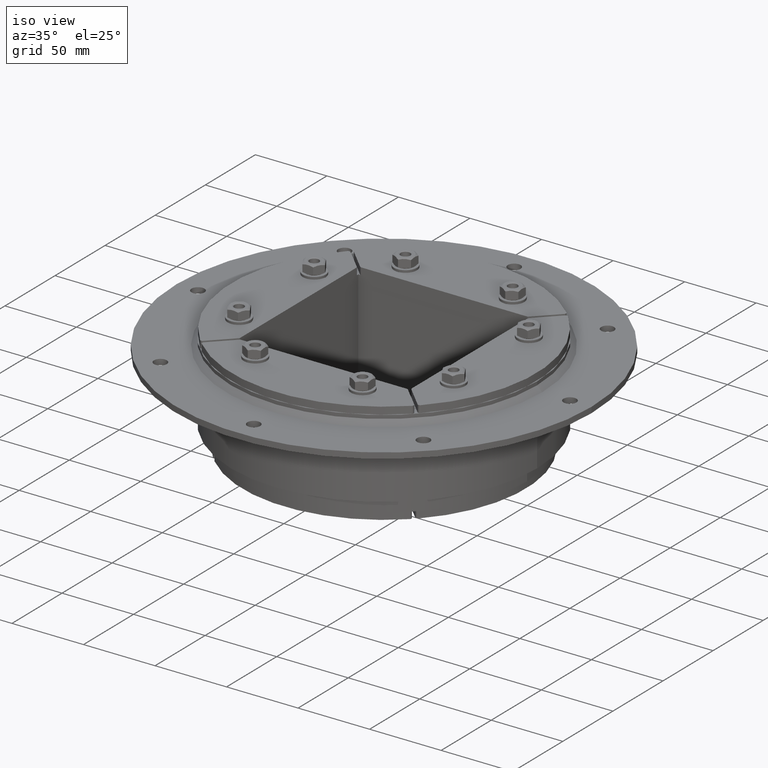
[diagram: clean part render]
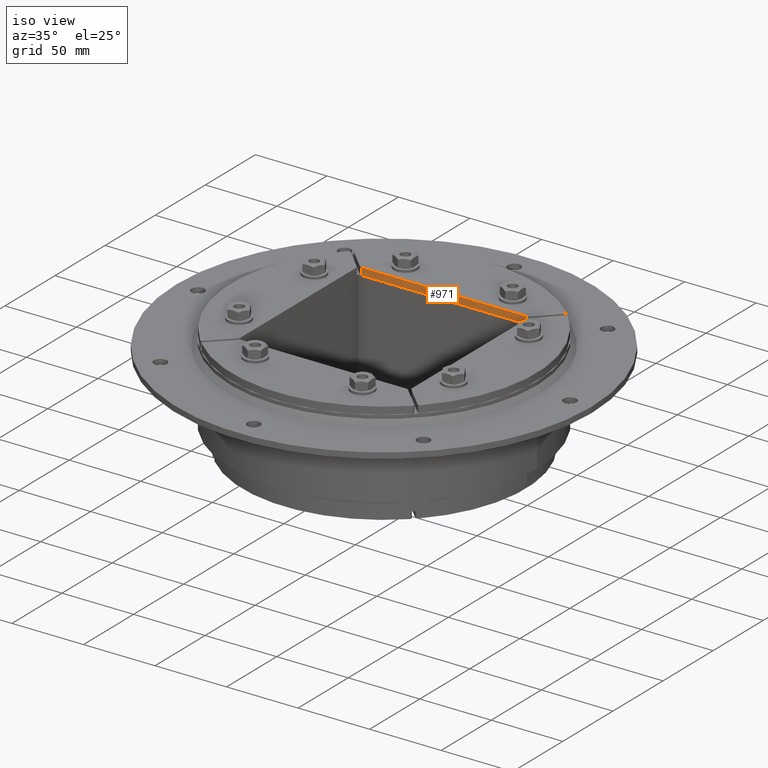
[diagram: same view with one face highlighted and labeled with its STEP entity id]
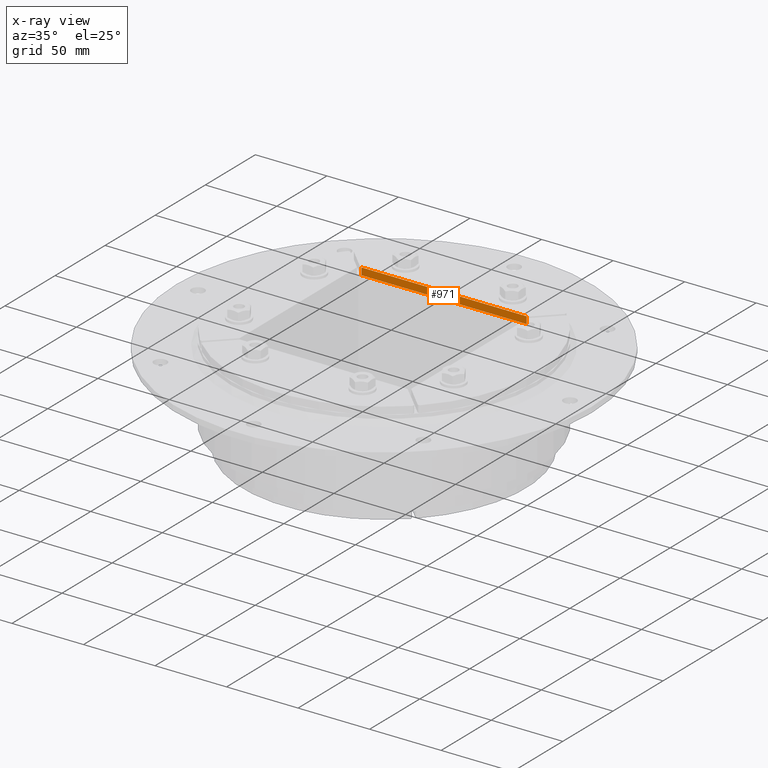
[diagram: x-ray of the same camera — body ghosted, the highlighted face saturated]
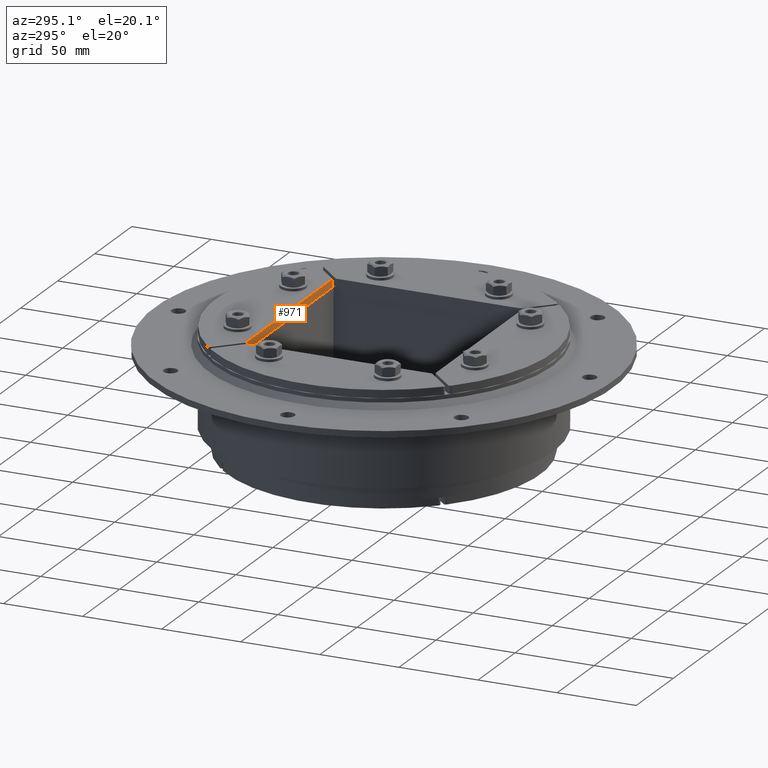
[diagram: same view with one face highlighted and labeled with its STEP entity id]
A machine part, iso view. The second image highlights one B-rep face of the part: STEP entity #971.
The next image is the same camera in x-ray: the body ghosted, the highlighted face saturated — about 0% of this face is hidden behind the body in this view.
A second angle (auxiliary view) of the same face is appended — the face is thin or edge-on in the first view.
In plain terms, the highlighted planar face has unit normal (0, 1, 0).
Its self-contained STEP definition (entity closure, byte-faithful):
#799=CARTESIAN_POINT('',(57.86446609406724,59.900000000000013,-5.0));
#800=VERTEX_POINT('',#799);
#808=CARTESIAN_POINT('',(-57.864466094067275,59.900000000000013,-5.0));
#809=VERTEX_POINT('',#808);
#810=CARTESIAN_POINT('',(57.864466094067254,59.900000000000013,-5.0));
#811=DIRECTION('',(-1.0,0.0,0.0));
#812=VECTOR('',#811,115.72893218813454);
#813=LINE('',#810,#812);
#814=EDGE_CURVE('',#800,#809,#813,.T.);
#923=CARTESIAN_POINT('',(57.86446609406724,59.900000000000013,0.0));
#924=VERTEX_POINT('',#923);
#932=CARTESIAN_POINT('',(57.864466094067247,59.900000000000013,0.0));
#933=DIRECTION('',(0.0,0.0,-1.0));
#934=VECTOR('',#933,5.0);
#935=LINE('',#932,#934);
#936=EDGE_CURVE('',#924,#800,#935,.T.);
#948=CARTESIAN_POINT('',(-59.900000000000006,59.900000000000013,0.0));
#949=DIRECTION('',(0.0,1.0,0.0));
#950=DIRECTION('',(1.0,0.0,0.0));
#951=AXIS2_PLACEMENT_3D('',#948,#949,#950);
#952=PLANE('',#951);
#953=ORIENTED_EDGE('',*,*,#936,.F.);
#954=CARTESIAN_POINT('',(-57.864466094067275,59.900000000000013,0.0));
#955=VERTEX_POINT('',#954);
#956=CARTESIAN_POINT('',(-57.864466094067275,59.900000000000013,0.0));
#957=DIRECTION('',(1.0,0.0,0.0));
#958=VECTOR('',#957,115.72893218813454);
#959=LINE('',#956,#958);
#960=EDGE_CURVE('',#955,#924,#959,.T.);
#961=ORIENTED_EDGE('',*,*,#960,.F.);
#962=CARTESIAN_POINT('',(-57.864466094067275,59.900000000000013,-5.0));
#963=DIRECTION('',(0.0,0.0,1.0));
#964=VECTOR('',#963,5.0);
#965=LINE('',#962,#964);
#966=EDGE_CURVE('',#809,#955,#965,.T.);
#967=ORIENTED_EDGE('',*,*,#966,.F.);
#968=ORIENTED_EDGE('',*,*,#814,.F.);
#969=EDGE_LOOP('',(#953,#961,#967,#968));
#970=FACE_OUTER_BOUND('',#969,.T.);
#971=ADVANCED_FACE('',(#970),#952,.F.);